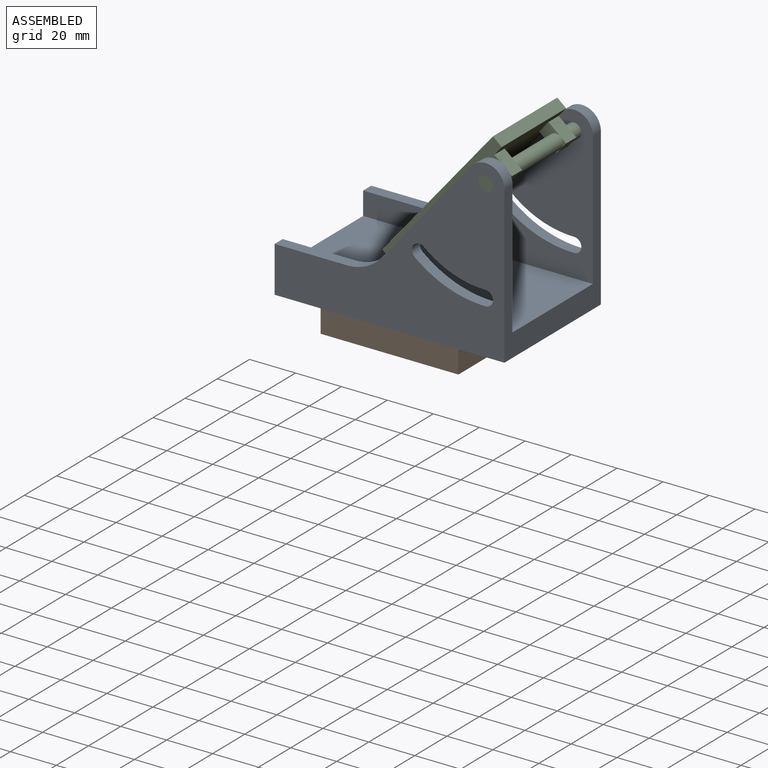
[diagram: assembled view]
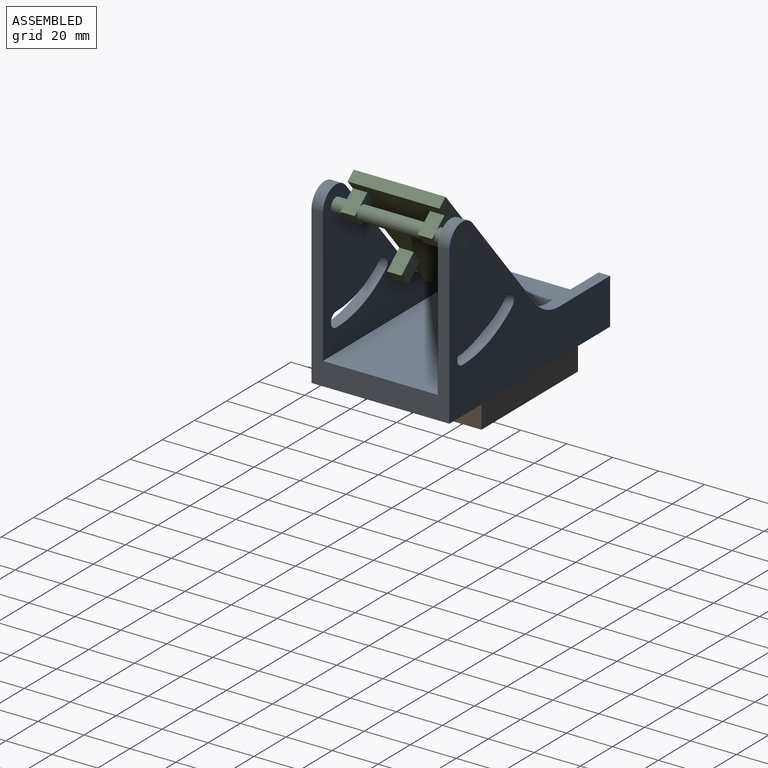
[diagram: assembled view, second angle]
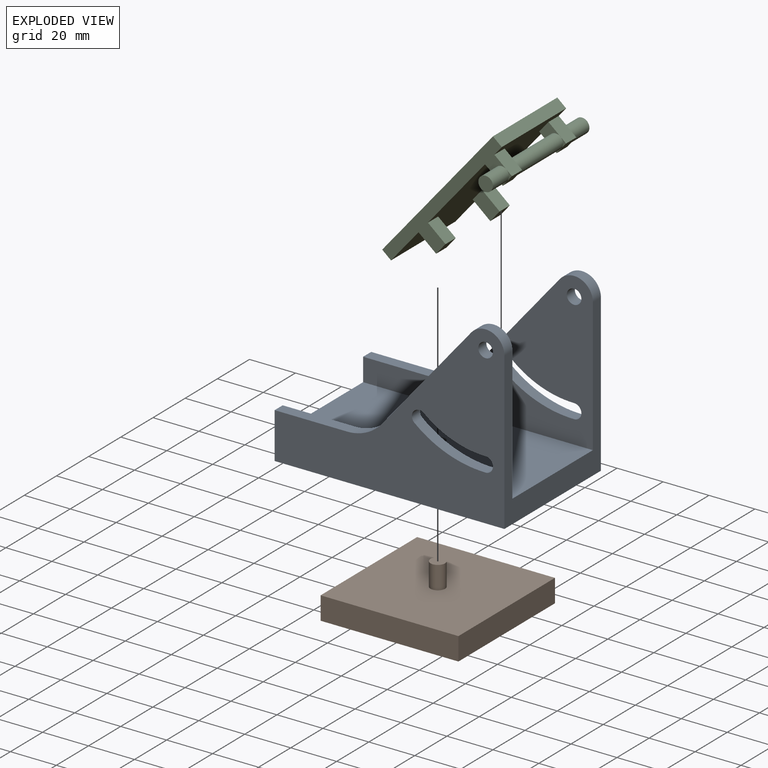
[diagram: exploded view]
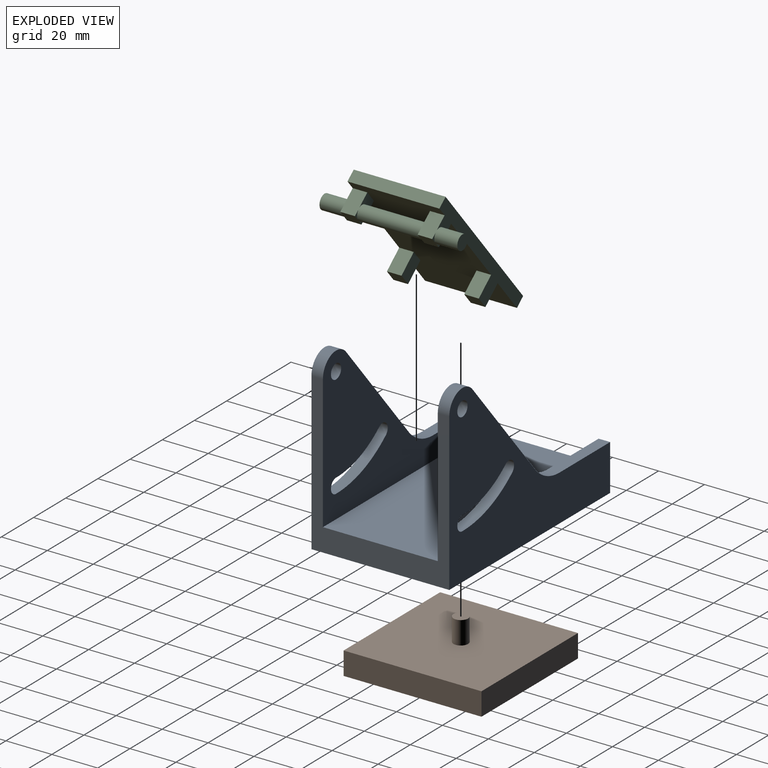
[diagram: exploded view, second angle]
FCSTD DOCUMENT  (FreeCAD 1.0R39109 (Git))
Label: Wedge
License: All rights reserved
LicenseURL: https://en.wikipedia.org/wiki/All_rights_reserved
objects: Sketcher::SketchObject×8, PartDesign::Pad×8, PartDesign::Body×3, App::Link×3, App::FeaturePython×3, PartDesign::Pocket×1, PartDesign::ShapeBinder×1, PartDesign::Plane×1, App::DocumentObjectGroup×1, Assembly::JointGroup×1, Assembly::AssemblyObject×1
note: 48 computed .brp shape members not serialized (recipe doc carries the construction recipe); baked Part::Feature solids carry a one-line shape summary decoded from their .brp

FEATURE [Sketcher::SketchObject] Sketch
  ArcFitTolerance = 1e-06
  AttachmentSupport = -> [XY_Plane]
  FullyConstrained = true
  MakeInternals = false
  MapMode = 5
  sketch-geometry (5):
    g0: LineSegment StartX=-30 StartY=-30 StartZ=0 EndX=30 EndY=-30 EndZ=0
    g1: LineSegment StartX=30 StartY=-30 StartZ=0 EndX=30 EndY=30 EndZ=0
    g2: LineSegment StartX=30 StartY=30 StartZ=0 EndX=-30 EndY=30 EndZ=0
    g3: LineSegment StartX=-30 StartY=30 StartZ=0 EndX=-30 EndY=-30 EndZ=0
    g4: GeomPoint [constr] X=0 Y=0 Z=0
  constraints (12):
    c: Coincident(g0,g1)
    c: Coincident(g1,g2)
    c: Coincident(g2,g3)
    c: Coincident(g3,g0)
    c: Horizontal(g0)
    c: Horizontal(g2)
    c: Vertical(g1)
    c: Vertical(g3)
    c: Symmetric(g2,g0,g4)
    c: Distance(g1,g3) = 60
    c: Distance(g0,g2) = 60
    c: Coincident(g4,g-1)
FEATURE [PartDesign::Pad] Pad
  Direction = (0,0,1)
  Length = 10
  Length2 = 10
  Profile = -> Sketch
  ReferenceAxis = -> Sketch [N_Axis]
  Refine = true
  Suppressed = false
  Type = 0
FEATURE [Sketcher::SketchObject] Sketch001
  ArcFitTolerance = 1e-06
  AttachmentSupport = -> [Pad]
  FullyConstrained = true
  MakeInternals = false
  MapMode = 5
  Placement = pos=(0,0,10) rot=(0,0,1;0rad)
  sketch-geometry (1):
    g0: Circle CenterX=0 CenterY=0 CenterZ=0 NormalX=0 NormalY=0 NormalZ=1 AngleXU=0 Radius=3.175
  constraints (2):
    c: Diameter(g0) = 6.35
    c: Coincident(g0,g-1)
FEATURE [PartDesign::Pad] Pad001
  BaseFeature = -> Pad
  Direction = (0,0,1)
  Length = 10
  Length2 = 10
  Profile = -> Sketch001
  ReferenceAxis = -> Sketch001 [N_Axis]
  Refine = true
  Suppressed = false
  Type = 0
FEATURE [PartDesign::Body] Body  label="Plate"
  AllowCompound = false
  Group = -> [Sketch,Pad,Sketch001,Pad001]
  Origin = -> Origin
  Placement = pos=(0,0,-33) rot=(0,0,1;0rad)
  Tip = -> Pad001
FEATURE [Sketcher::SketchObject] Sketch002
  ArcFitTolerance = 1e-06
  AttachmentSupport = -> [XY_Plane001]
  FullyConstrained = true
  MakeInternals = false
  MapMode = 5
  sketch-geometry (6):
    g0: LineSegment StartX=-50 StartY=-30 StartZ=0 EndX=50 EndY=-30 EndZ=0
    g1: LineSegment StartX=50 StartY=-30 StartZ=0 EndX=50 EndY=30 EndZ=0
    g2: LineSegment StartX=50 StartY=30 StartZ=0 EndX=-50 EndY=30 EndZ=0
    g3: LineSegment StartX=-50 StartY=30 StartZ=0 EndX=-50 EndY=-30 EndZ=0
    g4: GeomPoint [constr] X=0 Y=0 Z=0
    g5: Circle CenterX=0 CenterY=0 CenterZ=0 NormalX=0 NormalY=0 NormalZ=1 AngleXU=0 Radius=3.175
  constraints (14):
    c: Coincident(g0,g1)
    c: Coincident(g1,g2)
    c: Coincident(g2,g3)
    c: Coincident(g3,g0)
    c: Horizontal(g0)
    c: Horizontal(g2)
    c: Vertical(g1)
    c: Vertical(g3)
    c: Symmetric(g2,g0,g4)
    c: Distance(g1,g3) = 100
    c: Distance(g0,g2) = 60
    c: Coincident(g4,g-1)
    c: Diameter(g5) = 6.35
    c: Coincident(g5,g4)
FEATURE [PartDesign::Pad] Pad002  label="Bottom"
  Direction = (0,0,1)
  Length = 10
  Length2 = 10
  Profile = -> Sketch002
  ReferenceAxis = -> Sketch002 [N_Axis]
  Refine = true
  Suppressed = false
  Type = 0
FEATURE [Sketcher::SketchObject] Sketch003
  ArcFitTolerance = 1e-06
  AttachmentSupport = -> [Pad002]
  ExternalGeometry = -> [Pad002]
  FullyConstrained = true
  MakeInternals = false
  MapMode = 5
  Placement = pos=(0,-30,0) rot=(1,0,0;1.5708rad)
  sketch-geometry (16):
    g0: Circle CenterX=41.825 CenterY=68.175 CenterZ=0 NormalX=0 NormalY=0 NormalZ=1 AngleXU=0 Radius=3.175
    g1: ArcOfCircle CenterX=41.825 CenterY=68.175 CenterZ=0 NormalX=0 NormalY=0 NormalZ=1 AngleXU=0 Radius=48.175 StartAngle=4.01426 EndAngle=4.71239
    g2: ArcOfCircle CenterX=41.825 CenterY=23.175 CenterZ=0 NormalX=0 NormalY=0 NormalZ=1 AngleXU=0 Radius=3.175 StartAngle=4.71239 EndAngle=7.85398
    g3: ArcOfCircle CenterX=12.8996 CenterY=33.703 CenterZ=0 NormalX=0 NormalY=0 NormalZ=1 AngleXU=0 Radius=3.175 StartAngle=0.872665 EndAngle=4.01426
    g4: ArcOfCircle CenterX=41.825 CenterY=68.175 CenterZ=0 NormalX=0 NormalY=0 NormalZ=1 AngleXU=0 Radius=41.825 StartAngle=4.01426 EndAngle=4.71239
    g5: LineSegment [constr] StartX=12.8996 StartY=33.703 StartZ=0 EndX=41.825 EndY=68.175 EndZ=0
    g6: LineSegment [constr] StartX=41.825 StartY=68.175 StartZ=0 EndX=41.825 EndY=23.175 EndZ=0
    g7: ArcOfCircle CenterX=41.825 CenterY=68.175 CenterZ=0 NormalX=0 NormalY=0 NormalZ=1 AngleXU=0 Radius=8.175 StartAngle=7e-16 EndAngle=2.44346
    g8: LineSegment StartX=-3.27559 StartY=27.1442 StartZ=0 EndX=35.5626 EndY=73.4298 EndZ=0
    g9: LineSegment StartX=-50 StartY=10 StartZ=0 EndX=50 EndY=10 EndZ=0
    g10: LineSegment StartX=50 StartY=10 StartZ=0 EndX=50 EndY=68.175 EndZ=0
    g11: LineSegment StartX=-50 StartY=10 StartZ=0 EndX=-50 EndY=20 EndZ=0
    g12: ArcOfCircle CenterX=-18.5965 CenterY=40 CenterZ=0 NormalX=0 NormalY=0 NormalZ=1 AngleXU=0 Radius=20 StartAngle=4.71239 EndAngle=5.58505
    g13: LineSegment StartX=-50 StartY=20 StartZ=0 EndX=-18.5965 EndY=20 EndZ=0
    g14: GeomPoint X=-6.98962 Y=10 Z=0
    g15: LineSegment [constr] StartX=12.8996 StartY=33.703 StartZ=0 EndX=-6.98962 EndY=10 EndZ=0
  constraints (37):
    c: Diameter(g0) = 6.35
    c: Coincident(g1,g4)
    c: Tangent(g4,g3) = 1.5708
    c: Tangent(g4,g2) = 1.5708
    c: Tangent(g1,g3) = -1.5708
    c: Tangent(g1,g2) = -1.5708
    c: Coincident(g1,g0)
    c: Equal(g3,g0)
    c: Coincident(g5,g3)
    c: Coincident(g5,g0)
    c: Coincident(g6,g0)
    c: Coincident(g6,g2)
    c: Angle(g5,g6) = 0.698132
    c: Coincident(g7,g0)
    c: Distance(g7,g0) = 5
    c: Tangent(g8,g7) = 1.5708
    c: Coincident(g9,g-3)
    c: Coincident(g9,g-3)
    c: Coincident(g10,g9)
    c: Tangent(g10,g7) = -1.5708
    c: Vertical(g10)
    c: Coincident(g11,g9)
    c: Vertical(g11)
    c: Coincident(g13,g11)
    c: Tangent(g13,g12) = -1.5708
    c: Tangent(g8,g12) = -1.5708
    c: Distance(g3,g8) = 5
    c: Distance(g2,g10) = 5
    c: Horizontal(g13)
    c: Distance(g1,g9) = 10
    c: Distance(g9,g13) = 10
    c: DistanceY(g6,g6) = 45
    c: Radius(g12) = 20
    c: PointOnObject(g14,g9)
    c: Coincident(g15,g3)
    c: Coincident(g15,g14)
    c: Tangent(g15,g5)
FEATURE [PartDesign::Pad] Pad003  label="Block"
  BaseFeature = -> Pad002
  Direction = (0,-1,2e-16)
  Length = 10
  Length2 = 10
  Profile = -> Sketch003
  ReferenceAxis = -> Sketch003 [N_Axis]
  Refine = true
  Reversed = true
  Suppressed = false
  Type = 3
  UpToFace = -> Pad002 [Face3]
FEATURE [Sketcher::SketchObject] Sketch004
  ArcFitTolerance = 1e-06
  AttachmentSupport = -> [Pad003]
  ExternalGeometry = -> [Sketch003,Pad003]
  FullyConstrained = true
  MakeInternals = false
  MapMode = 5
  Placement = pos=(50,0,0) rot=(0.57735,0.57735,0.57735;2.0944rad)
  sketch-geometry (6):
    g0: LineSegment StartX=-25 StartY=76.35 StartZ=0 EndX=-25 EndY=10 EndZ=0
    g1: LineSegment StartX=-25 StartY=10 StartZ=0 EndX=25 EndY=10 EndZ=0
    g2: LineSegment StartX=25 StartY=10 StartZ=0 EndX=25 EndY=76.35 EndZ=0
    g3: LineSegment StartX=25 StartY=76.35 StartZ=0 EndX=-25 EndY=76.35 EndZ=0
    g4: LineSegment [constr] StartX=-30 StartY=10 StartZ=0 EndX=30 EndY=10 EndZ=0
    g5: LineSegment [constr] StartX=-30 StartY=76.35 StartZ=0 EndX=30 EndY=76.35 EndZ=0
  constraints (15):
    c: Coincident(g0,g1)
    c: Coincident(g1,g2)
    c: Coincident(g2,g3)
    c: Coincident(g3,g0)
    c: Vertical(g0)
    c: Vertical(g2)
    c: Horizontal(g1)
    c: Distance(g-4,g2) = 5
    c: Distance(g-3,g0) = 5
    c: Coincident(g4,g-3)
    c: PointOnObject(g4,g-5)
    c: Tangent(g4,g1)
    c: Coincident(g5,g-6)
    c: Coincident(g5,g-4)
    c: Tangent(g3,g5)
FEATURE [PartDesign::Pocket] Pocket
  BaseFeature = -> Pad003
  Direction = (-1,0,0)
  Length = 5
  Length2 = 5
  Profile = -> Sketch004
  ReferenceAxis = -> Sketch004 [N_Axis]
  Refine = true
  Suppressed = false
  Type = 1
FEATURE [PartDesign::Body] Body001  label="Base"
  AllowCompound = false
  Group = -> [Sketch002,Pad002,Sketch003,Pad003,Sketch004,Pocket]
  Origin = -> Origin001
  Tip = -> Pocket
FEATURE [PartDesign::ShapeBinder] ShapeBinder
  Support = -> [Pocket]
  TraceSupport = false
FEATURE [Sketcher::SketchObject] Sketch005
  ArcFitTolerance = 1e-06
  AttachmentSupport = -> [XY_Plane002]
  ExternalGeometry = -> [ShapeBinder]
  FullyConstrained = true
  MakeInternals = false
  MapMode = 5
  sketch-geometry (7):
    g0: LineSegment StartX=-25 StartY=20 StartZ=0 EndX=-25 EndY=-20 EndZ=0
    g1: LineSegment StartX=-25 StartY=-20 StartZ=0 EndX=50 EndY=-20 EndZ=0
    g2: LineSegment StartX=50 StartY=-20 StartZ=0 EndX=50 EndY=20 EndZ=0
    g3: LineSegment StartX=50 StartY=20 StartZ=0 EndX=-25 EndY=20 EndZ=0
    g4: GeomPoint [constr] X=0 Y=0 Z=0
    g5: LineSegment [constr] StartX=-50 StartY=25 StartZ=0 EndX=-50 EndY=-25 EndZ=0
    g6: LineSegment [constr] StartX=50 StartY=25 StartZ=0 EndX=50 EndY=-25 EndZ=0
  constraints (16):
    c: Coincident(g0,g1)
    c: Coincident(g1,g2)
    c: Coincident(g2,g3)
    c: Coincident(g3,g0)
    c: Vertical(g0)
    c: Horizontal(g1)
    c: Horizontal(g3)
    c: Coincident(g4,g-1)
    c: Distance(g-3,g3) = 5
    c: Coincident(g5,g-3)
    c: Coincident(g5,g-4)
    c: Coincident(g6,g-3)
    c: Coincident(g6,g-4)
    c: Tangent(g2,g6)
    c: Distance(g5,g1) = 5
    c: Distance(g2,g0) = 75
FEATURE [PartDesign::Pad] Pad004
  Direction = (0,0,1)
  Length = 5
  Length2 = 10
  Profile = -> Sketch005
  ReferenceAxis = -> Sketch005 [N_Axis]
  Refine = true
  Suppressed = false
  Type = 0
FEATURE [Sketcher::SketchObject] Sketch006
  ArcFitTolerance = 1e-06
  AttachmentSupport = -> [Pad004]
  ExternalGeometry = -> [ShapeBinder,Pad004]
  FullyConstrained = true
  MakeInternals = false
  MapMode = 5
  Placement = pos=(0,0,0) rot=(1,0,0;3.14159rad)
  sketch-geometry (21):
    g0: LineSegment StartX=38.65 StartY=20 StartZ=0 EndX=38.65 EndY=13.65 EndZ=0
    g1: LineSegment StartX=38.65 StartY=13.65 StartZ=0 EndX=45 EndY=13.65 EndZ=0
    g2: LineSegment StartX=45 StartY=13.65 StartZ=0 EndX=45 EndY=20 EndZ=0
    g3: LineSegment StartX=45 StartY=20 StartZ=0 EndX=38.65 EndY=20 EndZ=0
    g4: GeomPoint [constr] X=41.825 Y=16.825 Z=0
    g5: LineSegment StartX=38.65 StartY=-20 StartZ=0 EndX=45 EndY=-20 EndZ=0
    g6: LineSegment StartX=45 StartY=-20 StartZ=0 EndX=45 EndY=-13.65 EndZ=0
    g7: LineSegment StartX=45 StartY=-13.65 StartZ=0 EndX=38.65 EndY=-13.65 EndZ=0
    g8: LineSegment StartX=38.65 StartY=-13.65 StartZ=0 EndX=38.65 EndY=-20 EndZ=0
    g9: GeomPoint [constr] X=41.825 Y=-16.825 Z=0
    g10: LineSegment [constr] StartX=45 StartY=25 StartZ=0 EndX=45 EndY=-25 EndZ=0
    g11: LineSegment StartX=-6.35 StartY=20 StartZ=0 EndX=-6.35 EndY=13.65 EndZ=0
    g12: LineSegment StartX=-6.35 StartY=13.65 StartZ=0 EndX=-1.6e-14 EndY=13.65 EndZ=0
    g13: LineSegment StartX=-1.6e-14 StartY=13.65 StartZ=0 EndX=-1.6e-14 EndY=20 EndZ=0
    g14: LineSegment StartX=-1.6e-14 StartY=20 StartZ=0 EndX=-6.35 EndY=20 EndZ=0
    g15: LineSegment StartX=-6.35 StartY=-13.65 StartZ=0 EndX=-6.35 EndY=-20 EndZ=0
    g16: LineSegment StartX=-6.35 StartY=-20 StartZ=0 EndX=-1.42e-14 EndY=-20 EndZ=0
    g17: LineSegment StartX=-1.43e-14 StartY=-20 StartZ=0 EndX=-1.43e-14 EndY=-13.65 EndZ=0
    g18: LineSegment StartX=-1.43e-14 StartY=-13.65 StartZ=0 EndX=-6.35 EndY=-13.65 EndZ=0
    g19: LineSegment [constr] StartX=-6.35 StartY=20 StartZ=0 EndX=-6.35 EndY=-20 EndZ=0
    g20: GeomPoint [constr] X=-3.175 Y=16.825 Z=0
  constraints (49):
    c: Coincident(g0,g1)
    c: Coincident(g1,g2)
    c: Coincident(g2,g3)
    c: Coincident(g3,g0)
    c: Vertical(g0)
    c: Horizontal(g1)
    c: Symmetric(g2,g0,g4)
    c: Coincident(g5,g6)
    c: Coincident(g6,g7)
    c: Coincident(g7,g8)
    c: Coincident(g8,g5)
    c: Horizontal(g7)
    c: Vertical(g8)
    c: Symmetric(g7,g5,g9)
    c: Equal(g3,g-3)
    c: Equal(g3,g2)
    c: Coincident(g10,g-3)
    c: Coincident(g10,g-4)
    c: Tangent(g2,g10)
    c: Equal(g8,g7)
    c: Tangent(g6,g10)
    c: Equal(g7,g1)
    c: Tangent(g3,g-5)
    c: Coincident(g11,g12)
    c: Coincident(g12,g13)
    c: Coincident(g13,g14)
    c: Coincident(g14,g11)
    c: Vertical(g11)
    c: Vertical(g13)
    c: Horizontal(g12)
    c: Coincident(g15,g16)
    c: Coincident(g16,g17)
    c: Coincident(g17,g18)
    c: Coincident(g18,g15)
    c: Vertical(g15)
    c: Vertical(g17)
    c: Horizontal(g18)
    c: Tangent(g14,g-5)
    c: Equal(g13,g12)
    c: Equal(g13,g0)
    c: Equal(g17,g8)
    c: Equal(g18,g17)
    c: Tangent(g16,g-6)
    c: Tangent(g5,g-6)
    c: Coincident(g19,g11)
    c: PointOnObject(g19,g-6)
    c: Tangent(g15,g19)
    c: Symmetric(g13,g11,g20)
    c: DistanceX(g20,g4) = 45
FEATURE [PartDesign::Pad] Pad005
  BaseFeature = -> Pad004
  Direction = (0,0,-1)
  Length = 10
  Length2 = 10
  Profile = -> Sketch006
  ReferenceAxis = -> Sketch006 [N_Axis]
  Refine = true
  Suppressed = false
  Type = 0
FEATURE [PartDesign::Plane] DatumPlane
  AttachmentOffset = pos=(0,0,0) rot=(1,0,0;1.5708rad)
  AttachmentSupport = -> [Pad005]
  Length = 62.2474
  MapMode = 45
  Placement = pos=(41.825,7.2e-15,-5) rot=(0.57735,0.57735,0.57735;4.18879rad)
  ResizeMode = 0
  Width = 87.2474
FEATURE [Sketcher::SketchObject] Sketch007
  ArcFitTolerance = 1e-06
  AttachmentSupport = -> [DatumPlane]
  ExternalGeometry = -> [Pad005]
  FullyConstrained = true
  MakeInternals = false
  MapMode = 5
  Placement = pos=(41.825,7.2e-15,-5) rot=(0.57735,0.57735,0.57735;4.18879rad)
  sketch-geometry (1):
    g0: Circle CenterX=-1.825 CenterY=9.6e-15 CenterZ=0 NormalX=0 NormalY=0 NormalZ=1 AngleXU=0 Radius=3.175
  constraints (3):
    c: Diameter(g0) = 6.35
    c: Tangent(g0,g-4)
    c: Tangent(g0,g-3)
FEATURE [PartDesign::Pad] Pad006
  BaseFeature = -> Pad005
  Direction = (0,1,0)
  Length = 4
  Length2 = 10
  Midplane = true
  Offset = -5
  Profile = -> Sketch007
  ReferenceAxis = -> Sketch007 [N_Axis]
  Refine = true
  Suppressed = false
  Type = 3
  UpToFace = -> ShapeBinder [Face1]
FEATURE [App::Link] Plate  label="Plate001"
  LinkedObject = -> Body
FEATURE [App::FeaturePython] GroundedJoint  # Assembly grounded joint (typed FeaturePython)
  ObjectToGround = -> Plate
FEATURE [App::DocumentObjectGroup] Measurements
FEATURE [PartDesign::Pad] Pad007
  BaseFeature = -> Pad006
  Direction = (0,1,0)
  Length = 10
  Length2 = 10
  Offset = 10
  Profile = -> Sketch007
  ReferenceAxis = -> Sketch007 [N_Axis]
  Refine = true
  Reversed = true
  Suppressed = false
  Type = 3
  UpToFace = -> Pad006 [Face3]
FEATURE [PartDesign::Body] Body002  label="Teeter"
  AllowCompound = false
  Group = -> [Sketch005,ShapeBinder,Pad004,Sketch006,Pad005,DatumPlane,Sketch007,Pad006,Pad007]
  Origin = -> Origin002
  Placement = pos=(0,0,88) rot=(0,1,0;5.58505rad)
  Tip = -> Pad007
FEATURE [App::FeaturePython] Joint  label="Fixed"  # Assembly joint (typed FeaturePython)
  Activated = true
  AngleMax = 0
  AngleMin = 0
  Detach1 = false
  Detach2 = false
  Distance = 0
  Distance2 = 0
  EnableAngleMax = false
  EnableAngleMin = false
  EnableLengthMax = false
  EnableLengthMin = false
  JointType = 0 (Fixed)
  LengthMax = 0
  LengthMin = 0
  Placement1 = pos=(-9e-16,2e-16,20) rot=(0,0,1;0rad)
  Placement2 = pos=(0,0,10) rot=(0,0,1;0rad)
  Reference1 = -> Assembly [Plate.Face8,Plate.Face8]
  Reference2 = -> Assembly [Base.Edge39,Base.Edge39]
FEATURE [App::Link] Teeter  label="Teeter001"
  LinkPlacement = pos=(9.71215,-2.12e-14,50.5222) rot=(0,-1,0;0.872665rad)
  LinkedObject = -> Body002
  Placement = pos=(9.71215,-2.12e-14,50.5222) rot=(0,-1,0;0.872665rad)
FEATURE [App::Link] Base  label="Base001"
  LinkPlacement = pos=(-9e-16,2e-16,10) rot=(0,0,1;0rad)
  LinkedObject = -> Body001
  Placement = pos=(-9e-16,2e-16,10) rot=(0,0,1;0rad)
FEATURE [App::FeaturePython] Joint001  label="Revolute"  # Assembly joint (typed FeaturePython)
  Activated = true
  AngleMax = 140
  AngleMin = 90
  Detach1 = false
  Detach2 = false
  Distance = 0
  Distance2 = 0
  EnableAngleMax = true
  EnableAngleMin = true
  EnableLengthMax = false
  EnableLengthMin = false
  JointType = 1 (Revolute)
  LengthMax = 0
  LengthMin = 0
  Placement1 = pos=(41.825,30,68.175) rot=(1,0,0;1.5708rad)
  Placement2 = pos=(41.825,30,-6.825) rot=(0.57735,0.57735,0.57735;4.18879rad)
  Reference1 = -> Assembly [Base.Edge32,Base.Edge32]
  Reference2 = -> Assembly [Teeter.Face27,Teeter.Face27]
FEATURE [Assembly::JointGroup] Joints
  Group = -> [GroundedJoint,Joint,Joint001]
FEATURE [Assembly::AssemblyObject] Assembly
  Group = -> [Joints,Plate,GroundedJoint,Teeter,Base,Joint,Joint001]
  Origin = -> Origin003
  Type = Assembly
